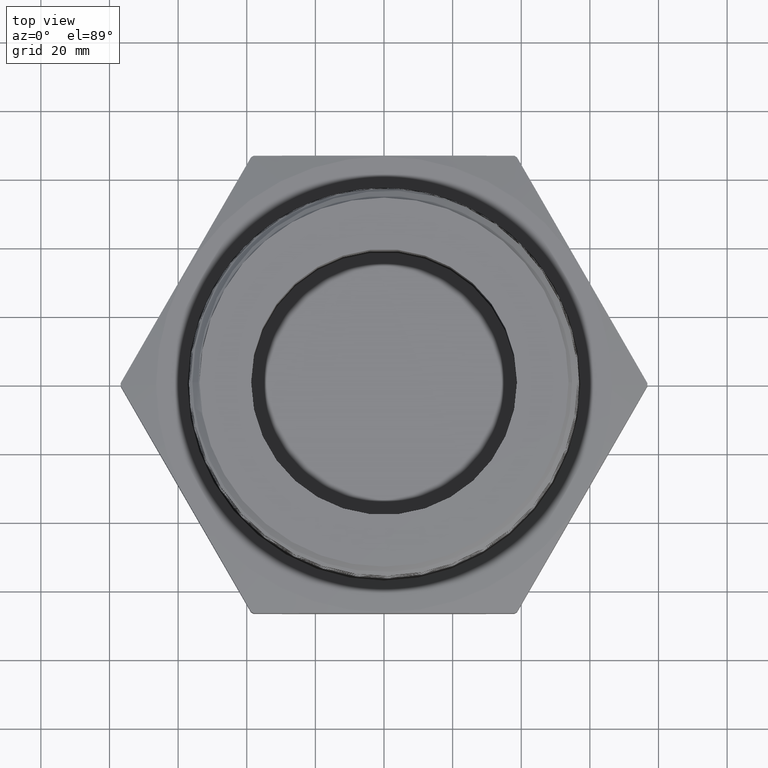
[diagram: clean part render]
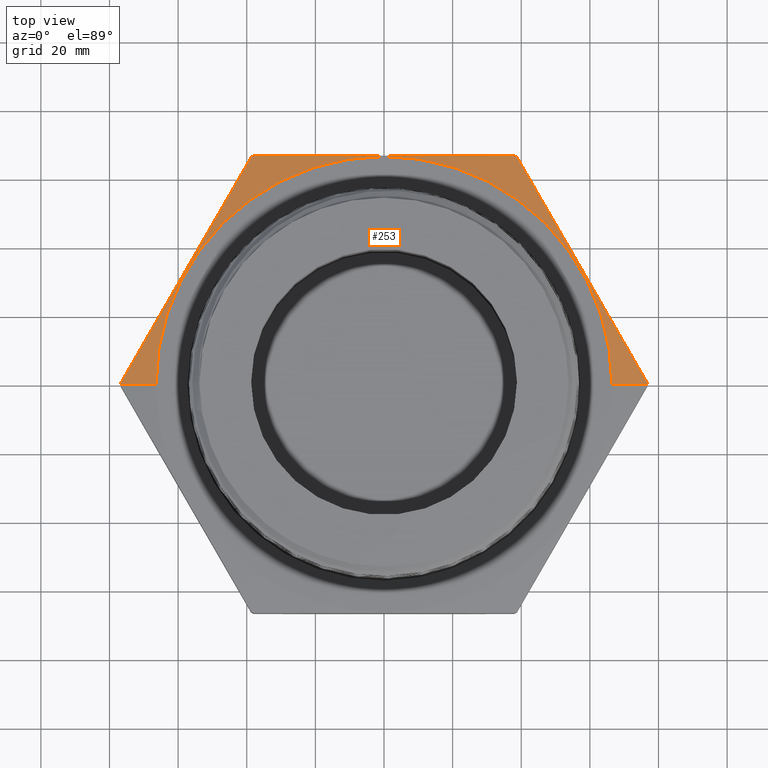
[diagram: same view with one face highlighted and labeled with its STEP entity id]
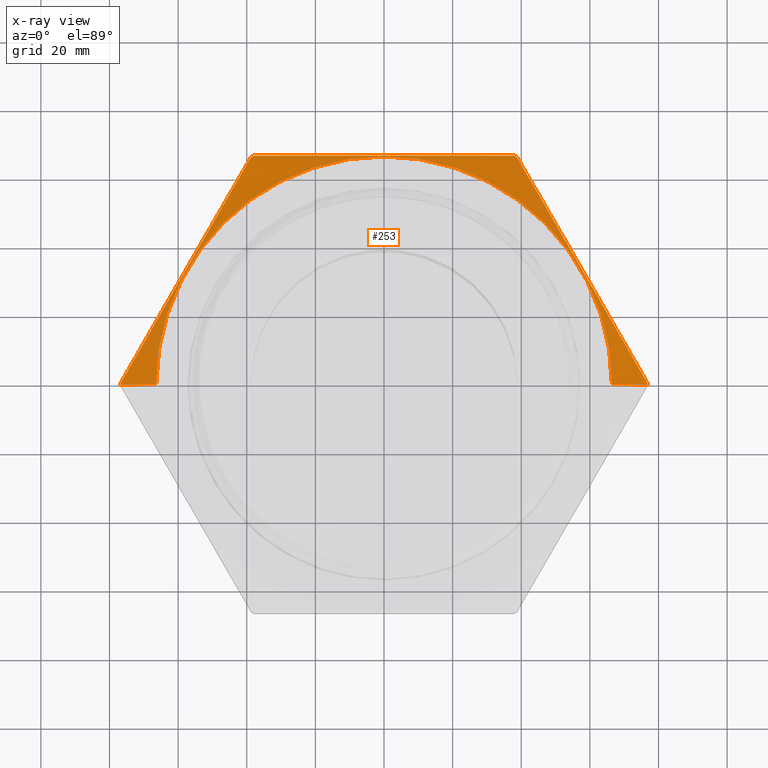
[diagram: x-ray of the same camera — body ghosted, the highlighted face saturated]
A machine part, top view. The second image highlights one B-rep face of the part: STEP entity #253.
The next image is the same camera in x-ray: the body ghosted, the highlighted face saturated — about 0% of this face is hidden behind the body in this view.
In plain terms, the highlighted conical surface has half-angle 78 deg.
Its self-contained STEP definition (entity closure, byte-faithful):
#6 = CIRCLE ( 'NONE', #6278, 3.021088913245534100 ) ;
#9 = LINE ( 'NONE', #1466, #25 ) ;
#10 = CIRCLE ( 'NONE', #6281, 2.615000000000000200 ) ;
#21 = CIRCLE ( 'NONE', #6279, 3.021088913245534100 ) ;
#23 = CIRCLE ( 'NONE', #6280, 3.021088913245534100 ) ;
#25 = VECTOR ( 'NONE', #1454, 39.37007874015748100 ) ;
#28 = CIRCLE ( 'NONE', #6277, 3.021088913245534100 ) ;
#113 = FACE_OUTER_BOUND ( 'NONE', #6497, .T. ) ;
#120 = CONICAL_SURFACE ( 'NONE', #6249, 2.615000000000000200, 1.361356816555583600 ) ;
#253 = ADVANCED_FACE ( 'NONE', ( #113 ), #120, .T. ) ;
#665 = CARTESIAN_POINT ( 'NONE',  ( -2.615000000000000200, 0.0000000000000000000, 0.6700000000000000400 ) ) ;
#686 = DIRECTION ( 'NONE',  ( -0.9781476007338069100, 0.0000000000000000000, -0.2079116908177528500 ) ) ;
#1427 = CARTESIAN_POINT ( 'NONE',  ( -3.021038762603234700, 0.01740737153618514300, 0.5836831368682163800 ) ) ;
#1428 = CARTESIAN_POINT ( 'NONE',  ( -2.896418416325054100, 0.2332561429468213700, 0.6099072106565095500 ) ) ;
#1429 = CARTESIAN_POINT ( 'NONE',  ( 7.148056852819461200E-017, 0.0000000000000000000, 0.5836831368682160500 ) ) ;
#1430 = DIRECTION ( 'NONE',  ( -1.224646799147351200E-016, -0.0000000000000000000, -1.000000000000000000 ) ) ;
#1431 = DIRECTION ( 'NONE',  ( -1.000000000000000000, 0.0000000000000000000, 1.130324227502401800E-016 ) ) ;
#1432 = CARTESIAN_POINT ( 'NONE',  ( -2.771798070046873600, 0.4491049143574569700, 0.6311668422512822800 ) ) ;
#1433 = CARTESIAN_POINT ( 'NONE',  ( -2.522557377490512600, 0.8808024571787285200, 0.6601932896857990500 ) ) ;
#1434 = CARTESIAN_POINT ( 'NONE',  ( -2.273316684934151100, 1.312500000000001100, 0.6755555790808012200 ) ) ;
#1435 = CARTESIAN_POINT ( 'NONE',  ( -2.024075992377790000, 1.744197542821271900, 0.6601932896857988200 ) ) ;
#1436 = CARTESIAN_POINT ( 'NONE',  ( -1.774835299821429000, 2.175895085642545600, 0.6311668422512822800 ) ) ;
#1437 = CARTESIAN_POINT ( 'NONE',  ( -1.650214953543248000, 2.391743857053179900, 0.6099072106565093200 ) ) ;
#1438 = CARTESIAN_POINT ( 'NONE',  ( -1.525594607265066800, 2.607592628463814700, 0.5836831368682162700 ) ) ;
#1439 = CARTESIAN_POINT ( 'NONE',  ( -1.495444155338166500, 2.625000000000000000, 0.5836831368682162700 ) ) ;
#1440 = CARTESIAN_POINT ( 'NONE',  ( -1.246409596590860600, 2.625000000000000000, 0.6098855221105360400 ) ) ;
#1441 = CARTESIAN_POINT ( 'NONE',  ( 7.148056852819461200E-017, 0.0000000000000000000, 0.5836831368682160500 ) ) ;
#1442 = DIRECTION ( 'NONE',  ( -1.224646799147351200E-016, -0.0000000000000000000, -1.000000000000000000 ) ) ;
#1443 = DIRECTION ( 'NONE',  ( -1.000000000000000000, 0.0000000000000000000, 1.130324227502401800E-016 ) ) ;
#1444 = CARTESIAN_POINT ( 'NONE',  ( -0.9964197837470087900, 2.625000000000000400, 0.6312149886311514400 ) ) ;
#1445 = CARTESIAN_POINT ( 'NONE',  ( -0.4971827429004255800, 2.625000000000000000, 0.6602523198066047000 ) ) ;
#1446 = CARTESIAN_POINT ( 'NONE',  ( -0.2477181513871068400, 2.625000000000000000, 0.6679061092993812100 ) ) ;
#1447 = CARTESIAN_POINT ( 'NONE',  ( 0.2508663697447537400, 2.625000000000000000, 0.6678425588284410100 ) ) ;
#1448 = CARTESIAN_POINT ( 'NONE',  ( 0.4999863546710301400, 2.625000000000000000, 0.6601276854627101700 ) ) ;
#1449 = CARTESIAN_POINT ( 'NONE',  ( 0.9979211733247992400, 2.625000000000000400, 0.6310888956331195400 ) ) ;
#1450 = CARTESIAN_POINT ( 'NONE',  ( 1.246737935324148100, 2.625000000000000000, 0.6098509756683758700 ) ) ;
#1451 = CARTESIAN_POINT ( 'NONE',  ( 1.495444155338166500, 2.625000000000000000, 0.5836831368682159300 ) ) ;
#1452 = CARTESIAN_POINT ( 'NONE',  ( 1.525594607265065000, 2.607592628463816000, 0.5836831368682159300 ) ) ;
#1453 = CARTESIAN_POINT ( 'NONE',  ( 1.650214953543246200, 2.391743857053180400, 0.6099072106565089900 ) ) ;
#1454 = DIRECTION ( 'NONE',  ( 0.9781476007338069100, 1.197885328332319900E-016, -0.2079116908177530700 ) ) ;
#1455 = CARTESIAN_POINT ( 'NONE',  ( 7.148056852819461200E-017, 0.0000000000000000000, 0.5836831368682160500 ) ) ;
#1456 = DIRECTION ( 'NONE',  ( -1.224646799147351200E-016, -0.0000000000000000000, -1.000000000000000000 ) ) ;
#1457 = DIRECTION ( 'NONE',  ( -1.000000000000000000, 0.0000000000000000000, 1.130324227502401800E-016 ) ) ;
#1458 = CARTESIAN_POINT ( 'NONE',  ( 1.774835299821427200, 2.175895085642544700, 0.6311668422512817200 ) ) ;
#1459 = CARTESIAN_POINT ( 'NONE',  ( 2.024075992377787800, 1.744197542821272400, 0.6601932896857987100 ) ) ;
#1460 = CARTESIAN_POINT ( 'NONE',  ( 2.273316684934150200, 1.312500000000001300, 0.6755555790808011100 ) ) ;
#1461 = CARTESIAN_POINT ( 'NONE',  ( 2.522557377490511700, 0.8808024571787279600, 0.6601932896857987100 ) ) ;
#1462 = CARTESIAN_POINT ( 'NONE',  ( 2.771798070046873600, 0.4491049143574562000, 0.6311668422512816100 ) ) ;
#1463 = CARTESIAN_POINT ( 'NONE',  ( 2.896418416325054100, 0.2332561429468202600, 0.6099072106565088800 ) ) ;
#1464 = CARTESIAN_POINT ( 'NONE',  ( 3.021038762603234700, 0.01740737153618405000, 0.5836831368682157100 ) ) ;
#1466 = CARTESIAN_POINT ( 'NONE',  ( 2.615000000000000200, 3.202451379770328800E-016, 0.6699999999999996000 ) ) ;
#1467 = CARTESIAN_POINT ( 'NONE',  ( 7.148056852819461200E-017, 0.0000000000000000000, 0.5836831368682160500 ) ) ;
#1468 = DIRECTION ( 'NONE',  ( -1.224646799147351200E-016, -0.0000000000000000000, -1.000000000000000000 ) ) ;
#1469 = DIRECTION ( 'NONE',  ( -1.000000000000000000, 0.0000000000000000000, 1.130324227502401800E-016 ) ) ;
#1471 = CARTESIAN_POINT ( 'NONE',  ( 8.205133554287250800E-017, 0.0000000000000000000, 0.6699999999999998200 ) ) ;
#1472 = DIRECTION ( 'NONE',  ( -1.224646799147351200E-016, -0.0000000000000000000, -1.000000000000000000 ) ) ;
#1473 = DIRECTION ( 'NONE',  ( -1.000000000000000000, 0.0000000000000000000, 1.044683745187098700E-016 ) ) ;
#1798 = DIRECTION ( 'NONE',  ( -1.000000000000000000, 0.0000000000000000000, 1.044683745187098700E-016 ) ) ;
#1799 = CARTESIAN_POINT ( 'NONE',  ( 8.205133554287250800E-017, 0.0000000000000000000, 0.6699999999999998200 ) ) ;
#1800 = DIRECTION ( 'NONE',  ( -1.224646799147351200E-016, -0.0000000000000000000, -1.000000000000000000 ) ) ;
#1878 = CARTESIAN_POINT ( 'NONE',  ( -2.615000000000000200, 0.0000000000000000000, 0.6700000000000000400 ) ) ;
#1891 = CARTESIAN_POINT ( 'NONE',  ( 2.615000000000000200, 3.202451379770328800E-016, 0.6699999999999996000 ) ) ;
#1899 = CARTESIAN_POINT ( 'NONE',  ( -1.495444155338166500, 2.625000000000000000, 0.5836831368682162700 ) ) ;
#1910 = CARTESIAN_POINT ( 'NONE',  ( -1.525594607265066800, 2.607592628463814700, 0.5836831368682162700 ) ) ;
#1912 = CARTESIAN_POINT ( 'NONE',  ( 3.021088913245534100, 3.699766867545698800E-016, 0.5836831368682157100 ) ) ;
#1913 = CARTESIAN_POINT ( 'NONE',  ( 3.021038762603234700, 0.01740737153618405000, 0.5836831368682157100 ) ) ;
#1914 = CARTESIAN_POINT ( 'NONE',  ( -3.021088913245534100, 0.0000000000000000000, 0.5836831368682163800 ) ) ;
#1916 = CARTESIAN_POINT ( 'NONE',  ( 1.525594607265065000, 2.607592628463816000, 0.5836831368682159300 ) ) ;
#1917 = CARTESIAN_POINT ( 'NONE',  ( 1.495444155338166500, 2.625000000000000000, 0.5836831368682159300 ) ) ;
#1922 = CARTESIAN_POINT ( 'NONE',  ( -3.021038762603234700, 0.01740737153618514300, 0.5836831368682163800 ) ) ;
#3572 = B_SPLINE_CURVE_WITH_KNOTS ( 'NONE', 3,
 ( #1427, #1428, #1432, #1433, #1434, #1435, #1436, #1437, #1438 ),
 .UNSPECIFIED., .F., .F.,
 ( 4, 2, 1, 2, 4 ),
 ( 1.900818206200479600E-006, 0.01899404159100094200, 0.03798618236379568100, 0.05697832313659039600, 0.07597046390938509700 ),
 .UNSPECIFIED. ) ;
#3573 = B_SPLINE_CURVE_WITH_KNOTS ( 'NONE', 3,
 ( #1439, #1440, #1444, #1445, #1446, #1447, #1448, #1449, #1450, #1451 ),
 .UNSPECIFIED., .F., .F.,
 ( 4, 2, 2, 2, 4 ),
 ( 0.06441118504653256500, 0.08347926990928653000, 0.1025473547720405100, 0.1216154396347944900, 0.1406835244975484500 ),
 .UNSPECIFIED. ) ;
#3574 = B_SPLINE_CURVE_WITH_KNOTS ( 'NONE', 3,
 ( #1452, #1453, #1458, #1459, #1460, #1461, #1462, #1463, #1464 ),
 .UNSPECIFIED., .F., .F.,
 ( 4, 2, 1, 2, 4 ),
 ( 1.900818205968493200E-006, 0.01899404159100071000, 0.03798618236379545200, 0.05697832313659019500, 0.07597046390938494400 ),
 .UNSPECIFIED. ) ;
#6249 = AXIS2_PLACEMENT_3D ( 'NONE', #1799, #1800, #1798 ) ;
#6277 = AXIS2_PLACEMENT_3D ( 'NONE', #1429, #1430, #1431 ) ;
#6278 = AXIS2_PLACEMENT_3D ( 'NONE', #1441, #1442, #1443 ) ;
#6279 = AXIS2_PLACEMENT_3D ( 'NONE', #1455, #1456, #1457 ) ;
#6280 = AXIS2_PLACEMENT_3D ( 'NONE', #1467, #1468, #1469 ) ;
#6281 = AXIS2_PLACEMENT_3D ( 'NONE', #1471, #1472, #1473 ) ;
#6346 = VERTEX_POINT ( 'NONE', #1878 ) ;
#6359 = VERTEX_POINT ( 'NONE', #1891 ) ;
#6367 = VERTEX_POINT ( 'NONE', #1899 ) ;
#6378 = VERTEX_POINT ( 'NONE', #1910 ) ;
#6380 = VERTEX_POINT ( 'NONE', #1912 ) ;
#6381 = VERTEX_POINT ( 'NONE', #1913 ) ;
#6382 = VERTEX_POINT ( 'NONE', #1914 ) ;
#6384 = VERTEX_POINT ( 'NONE', #1916 ) ;
#6385 = VERTEX_POINT ( 'NONE', #1917 ) ;
#6390 = VERTEX_POINT ( 'NONE', #1922 ) ;
#6412 = ORIENTED_EDGE ( 'NONE', *, *, #7418, .T. ) ;
#6415 = ORIENTED_EDGE ( 'NONE', *, *, #7417, .T. ) ;
#6454 = ORIENTED_EDGE ( 'NONE', *, *, #7413, .F. ) ;
#6455 = ORIENTED_EDGE ( 'NONE', *, *, #7416, .F. ) ;
#6456 = ORIENTED_EDGE ( 'NONE', *, *, #7414, .F. ) ;
#6457 = ORIENTED_EDGE ( 'NONE', *, *, #7412, .F. ) ;
#6458 = ORIENTED_EDGE ( 'NONE', *, *, #7415, .F. ) ;
#6460 = ORIENTED_EDGE ( 'NONE', *, *, #7411, .F. ) ;
#6461 = ORIENTED_EDGE ( 'NONE', *, *, #7473, .F. ) ;
#6463 = ORIENTED_EDGE ( 'NONE', *, *, #7410, .F. ) ;
#6497 = EDGE_LOOP ( 'NONE', ( #6412, #6415, #6455, #6458, #6456, #6454, #6457, #6460, #6463, #6461 ) ) ;
#7321 = LINE ( 'NONE', #665, #7329 ) ;
#7329 = VECTOR ( 'NONE', #686, 39.37007874015748100 ) ;
#7410 = EDGE_CURVE ( 'NONE', #6382, #6390, #28, .T. ) ;
#7411 = EDGE_CURVE ( 'NONE', #6390, #6378, #3572, .T. ) ;
#7412 = EDGE_CURVE ( 'NONE', #6378, #6367, #6, .T. ) ;
#7413 = EDGE_CURVE ( 'NONE', #6367, #6385, #3573, .T. ) ;
#7414 = EDGE_CURVE ( 'NONE', #6385, #6384, #21, .T. ) ;
#7415 = EDGE_CURVE ( 'NONE', #6384, #6381, #3574, .T. ) ;
#7416 = EDGE_CURVE ( 'NONE', #6381, #6380, #23, .T. ) ;
#7417 = EDGE_CURVE ( 'NONE', #6359, #6380, #9, .T. ) ;
#7418 = EDGE_CURVE ( 'NONE', #6346, #6359, #10, .T. ) ;
#7473 = EDGE_CURVE ( 'NONE', #6346, #6382, #7321, .T. ) ;